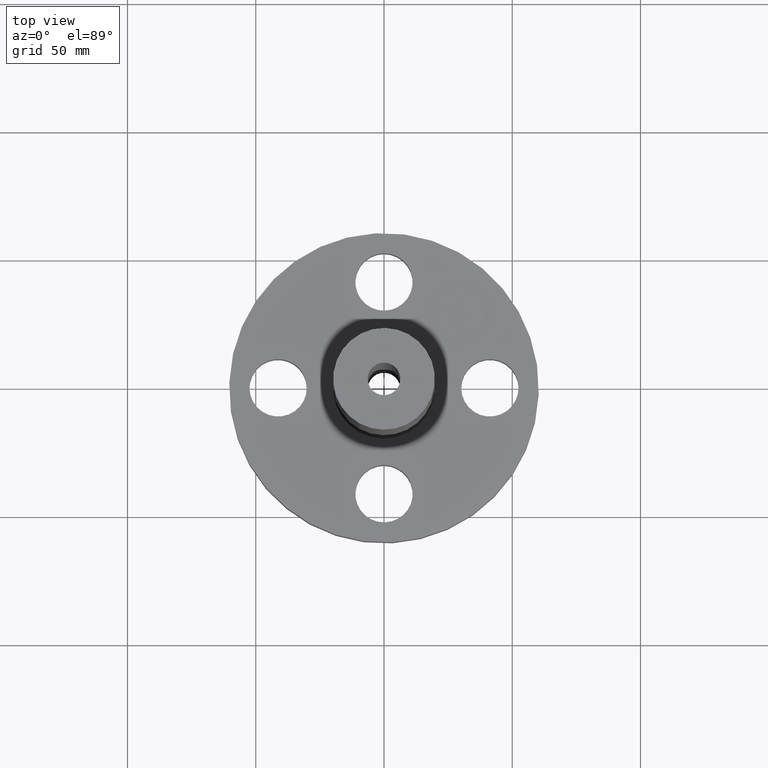
[diagram: clean part render]
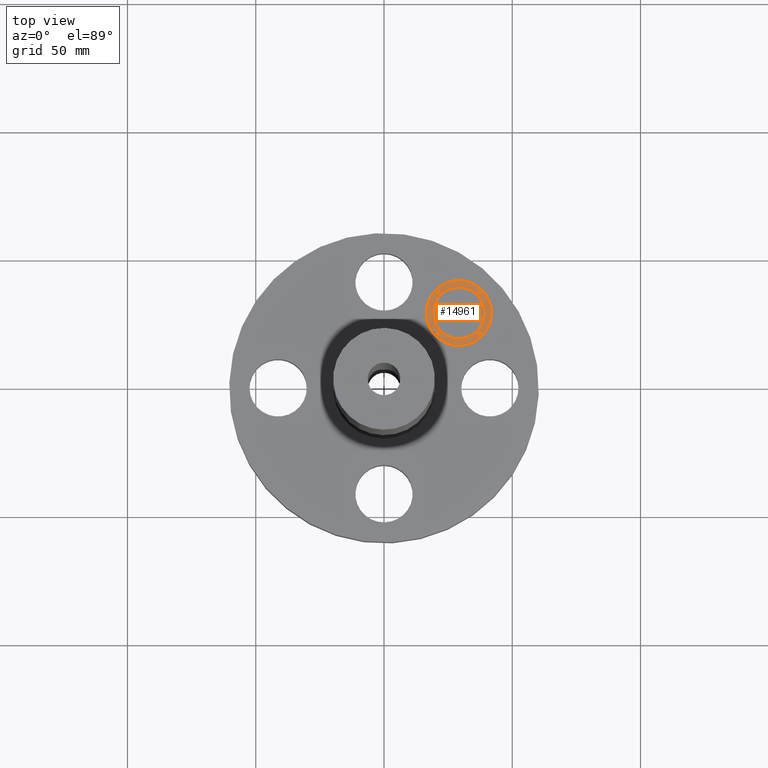
[diagram: same view with one face highlighted and labeled with its STEP entity id]
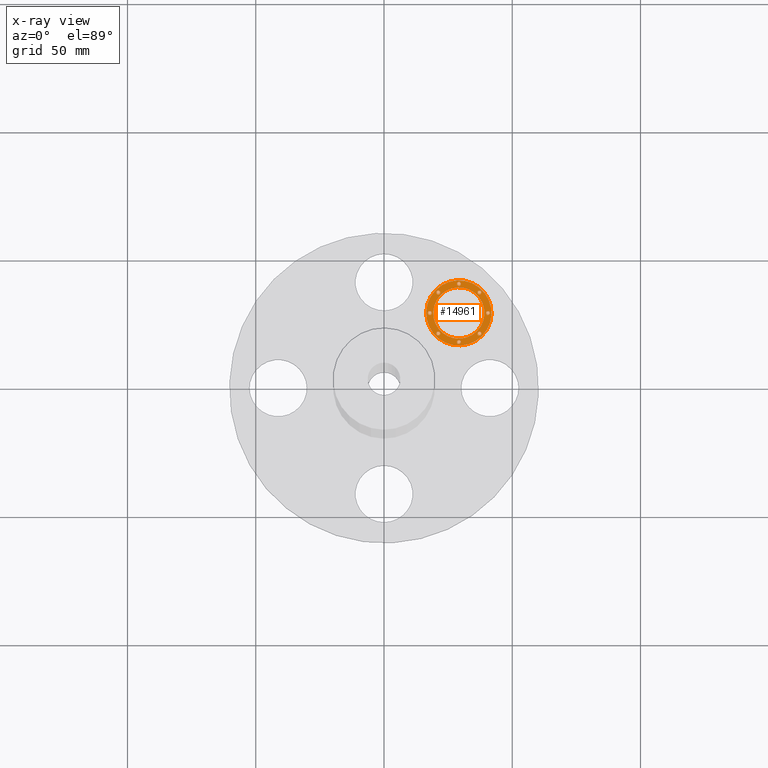
[diagram: x-ray of the same camera — body ghosted, the highlighted face saturated]
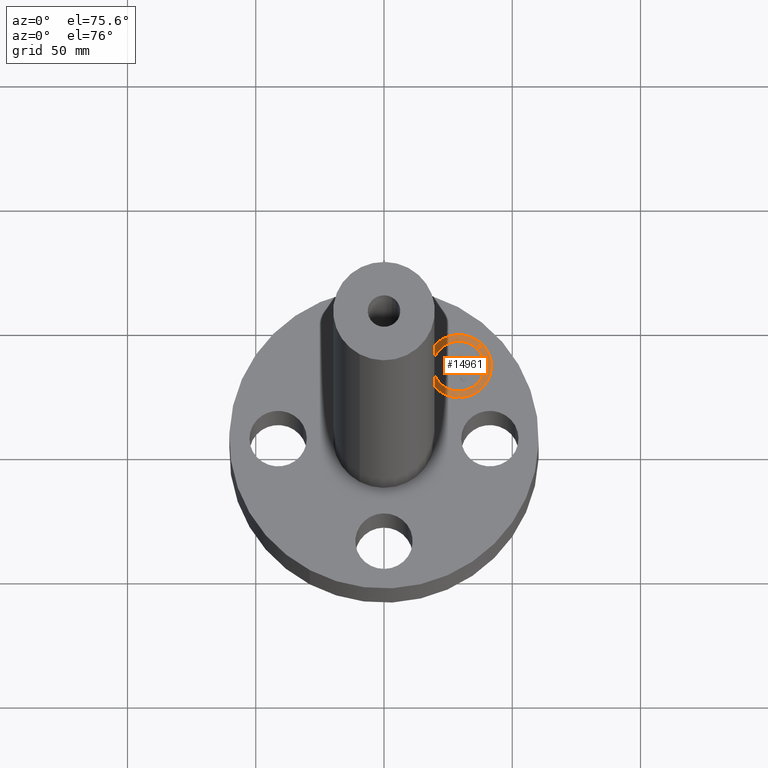
[diagram: same view with one face highlighted and labeled with its STEP entity id]
A machine part, top view. The second image highlights one B-rep face of the part: STEP entity #14961.
The next image is the same camera in x-ray: the body ghosted, the highlighted face saturated — about 0% of this face is hidden behind the body in this view.
A second angle (auxiliary view) of the same face is appended — the face is thin or edge-on in the first view.
In plain terms, the highlighted planar face has unit normal (0, 0, 1).
Its self-contained STEP definition (entity closure, byte-faithful):
#3608=AXIS2_PLACEMENT_3D('Plane Axis2P3D',#3605,#3606,#3607) ;
#14759=AXIS2_PLACEMENT_3D('Circle Axis2P3D',#14757,#14758,$) ;
#14778=AXIS2_PLACEMENT_3D('Circle Axis2P3D',#14776,#14777,$) ;
#14801=AXIS2_PLACEMENT_3D('Circle Axis2P3D',#14799,#14800,$) ;
#14810=AXIS2_PLACEMENT_3D('Circle Axis2P3D',#14808,#14809,$) ;
#14819=AXIS2_PLACEMENT_3D('Circle Axis2P3D',#14817,#14818,$) ;
#14828=AXIS2_PLACEMENT_3D('Circle Axis2P3D',#14826,#14827,$) ;
#14837=AXIS2_PLACEMENT_3D('Circle Axis2P3D',#14835,#14836,$) ;
#14846=AXIS2_PLACEMENT_3D('Circle Axis2P3D',#14844,#14845,$) ;
#14855=AXIS2_PLACEMENT_3D('Circle Axis2P3D',#14853,#14854,$) ;
#14864=AXIS2_PLACEMENT_3D('Circle Axis2P3D',#14862,#14863,$) ;
#14873=AXIS2_PLACEMENT_3D('Circle Axis2P3D',#14871,#14872,$) ;
#14882=AXIS2_PLACEMENT_3D('Circle Axis2P3D',#14880,#14881,$) ;
#14891=AXIS2_PLACEMENT_3D('Circle Axis2P3D',#14889,#14890,$) ;
#14900=AXIS2_PLACEMENT_3D('Circle Axis2P3D',#14898,#14899,$) ;
#14909=AXIS2_PLACEMENT_3D('Circle Axis2P3D',#14907,#14908,$) ;
#14918=AXIS2_PLACEMENT_3D('Circle Axis2P3D',#14916,#14917,$) ;
#14927=AXIS2_PLACEMENT_3D('Circle Axis2P3D',#14925,#14926,$) ;
#14936=AXIS2_PLACEMENT_3D('Circle Axis2P3D',#14934,#14935,$) ;
#14945=AXIS2_PLACEMENT_3D('Circle Axis2P3D',#14943,#14944,$) ;
#14954=AXIS2_PLACEMENT_3D('Circle Axis2P3D',#14952,#14953,$) ;
#3605=CARTESIAN_POINT('Axis2P3D Location',(0.,0.,0.875000000004)) ;
#14747=CARTESIAN_POINT('Vertex',(0.795495132374,1.50260190649,0.875000000004)) ;
#14754=CARTESIAN_POINT('Vertex',(1.50260190649,0.795495132374,0.875000000004)) ;
#14757=CARTESIAN_POINT('Axis2P3D Location',(1.14904851943,1.14904851943,0.875000000004)) ;
#14776=CARTESIAN_POINT('Axis2P3D Location',(1.14904851943,1.14904851943,0.875000000004)) ;
#14799=CARTESIAN_POINT('Axis2P3D Location',(1.14904851943,1.14904851943,0.875000000004)) ;
#14803=CARTESIAN_POINT('Vertex',(1.42760573348,0.870491305386,0.875000000004)) ;
#14805=CARTESIAN_POINT('Vertex',(0.870491305386,1.42760573348,0.875000000004)) ;
#14808=CARTESIAN_POINT('Axis2P3D Location',(1.14904851943,1.14904851943,0.875000000004)) ;
#14817=CARTESIAN_POINT('Axis2P3D Location',(0.83299321888,0.83299321888,0.875000000004)) ;
#14821=CARTESIAN_POINT('Vertex',(0.854420696883,0.811565740876,0.875000000004)) ;
#14823=CARTESIAN_POINT('Vertex',(0.811565740876,0.854420696883,0.875000000004)) ;
#14826=CARTESIAN_POINT('Axis2P3D Location',(0.83299321888,0.83299321888,0.875000000004)) ;
#14835=CARTESIAN_POINT('Axis2P3D Location',(0.83299321888,1.46510381999,0.875000000004)) ;
#14839=CARTESIAN_POINT('Vertex',(0.854420696883,1.44367634198,0.875000000004)) ;
#14841=CARTESIAN_POINT('Vertex',(0.811565740876,1.48653129799,0.875000000004)) ;
#14844=CARTESIAN_POINT('Axis2P3D Location',(0.83299321888,1.46510381999,0.875000000004)) ;
#14853=CARTESIAN_POINT('Axis2P3D Location',(0.702078826931,1.14904851943,0.875000000004)) ;
#14857=CARTESIAN_POINT('Vertex',(0.723506304934,1.12762104143,0.875000000004)) ;
#14859=CARTESIAN_POINT('Vertex',(0.680651348927,1.17047599744,0.875000000004)) ;
#14862=CARTESIAN_POINT('Axis2P3D Location',(0.702078826931,1.14904851943,0.875000000004)) ;
#14871=CARTESIAN_POINT('Axis2P3D Location',(1.46510381999,1.46510381999,0.875000000004)) ;
#14875=CARTESIAN_POINT('Vertex',(1.48653129799,1.44367634198,0.875000000004)) ;
#14877=CARTESIAN_POINT('Vertex',(1.44367634198,1.48653129799,0.875000000004)) ;
#14880=CARTESIAN_POINT('Axis2P3D Location',(1.46510381999,1.46510381999,0.875000000004)) ;
#14889=CARTESIAN_POINT('Axis2P3D Location',(1.14904851943,1.59601821193,0.875000000004)) ;
#14893=CARTESIAN_POINT('Vertex',(1.17047599744,1.57459073393,0.875000000004)) ;
#14895=CARTESIAN_POINT('Vertex',(1.12762104143,1.61744568994,0.875000000004)) ;
#14898=CARTESIAN_POINT('Axis2P3D Location',(1.14904851943,1.59601821193,0.875000000004)) ;
#14907=CARTESIAN_POINT('Axis2P3D Location',(1.46510381999,0.83299321888,0.875000000004)) ;
#14911=CARTESIAN_POINT('Vertex',(1.44367634198,0.854420696883,0.875000000004)) ;
#14913=CARTESIAN_POINT('Vertex',(1.48653129799,0.811565740876,0.875000000004)) ;
#14916=CARTESIAN_POINT('Axis2P3D Location',(1.46510381999,0.83299321888,0.875000000004)) ;
#14925=CARTESIAN_POINT('Axis2P3D Location',(1.14904851943,0.702078826931,0.875000000004)) ;
#14929=CARTESIAN_POINT('Vertex',(1.12762104143,0.723506304935,0.875000000004)) ;
#14931=CARTESIAN_POINT('Vertex',(1.17047599744,0.680651348927,0.875000000004)) ;
#14934=CARTESIAN_POINT('Axis2P3D Location',(1.14904851943,0.702078826931,0.875000000004)) ;
#14943=CARTESIAN_POINT('Axis2P3D Location',(1.59601821193,1.14904851943,0.875000000004)) ;
#14947=CARTESIAN_POINT('Vertex',(1.57459073393,1.17047599744,0.875000000004)) ;
#14949=CARTESIAN_POINT('Vertex',(1.61744568994,1.12762104143,0.875000000004)) ;
#14952=CARTESIAN_POINT('Axis2P3D Location',(1.59601821193,1.14904851943,0.875000000004)) ;
#3606=DIRECTION('Axis2P3D Direction',(0.,0.,0.0393700787402)) ;
#3607=DIRECTION('Axis2P3D XDirection',(0.0393700787402,0.,0.)) ;
#14758=DIRECTION('Axis2P3D Direction',(0.,0.,0.0393700787402)) ;
#14777=DIRECTION('Axis2P3D Direction',(0.,0.,0.0393700787402)) ;
#14800=DIRECTION('Axis2P3D Direction',(0.,0.,0.0393700787402)) ;
#14809=DIRECTION('Axis2P3D Direction',(0.,0.,0.0393700787402)) ;
#14818=DIRECTION('Axis2P3D Direction',(0.,0.,0.0393700787402)) ;
#14827=DIRECTION('Axis2P3D Direction',(0.,0.,0.0393700787402)) ;
#14836=DIRECTION('Axis2P3D Direction',(0.,0.,0.0393700787402)) ;
#14845=DIRECTION('Axis2P3D Direction',(0.,0.,0.0393700787402)) ;
#14854=DIRECTION('Axis2P3D Direction',(0.,0.,0.0393700787402)) ;
#14863=DIRECTION('Axis2P3D Direction',(0.,0.,0.0393700787402)) ;
#14872=DIRECTION('Axis2P3D Direction',(0.,0.,0.0393700787402)) ;
#14881=DIRECTION('Axis2P3D Direction',(0.,0.,0.0393700787402)) ;
#14890=DIRECTION('Axis2P3D Direction',(0.,0.,0.0393700787402)) ;
#14899=DIRECTION('Axis2P3D Direction',(0.,0.,0.0393700787402)) ;
#14908=DIRECTION('Axis2P3D Direction',(0.,0.,0.0393700787402)) ;
#14917=DIRECTION('Axis2P3D Direction',(0.,0.,0.0393700787402)) ;
#14926=DIRECTION('Axis2P3D Direction',(0.,0.,0.0393700787402)) ;
#14935=DIRECTION('Axis2P3D Direction',(0.,0.,0.0393700787402)) ;
#14944=DIRECTION('Axis2P3D Direction',(0.,0.,0.0393700787402)) ;
#14953=DIRECTION('Axis2P3D Direction',(0.,0.,0.0393700787402)) ;
#14796=ORIENTED_EDGE('',*,*,#14761,.T.) ;
#14797=ORIENTED_EDGE('',*,*,#14780,.T.) ;
#14814=ORIENTED_EDGE('',*,*,#14807,.F.) ;
#14815=ORIENTED_EDGE('',*,*,#14812,.F.) ;
#14832=ORIENTED_EDGE('',*,*,#14825,.F.) ;
#14833=ORIENTED_EDGE('',*,*,#14830,.F.) ;
#14850=ORIENTED_EDGE('',*,*,#14843,.F.) ;
#14851=ORIENTED_EDGE('',*,*,#14848,.F.) ;
#14868=ORIENTED_EDGE('',*,*,#14861,.F.) ;
#14869=ORIENTED_EDGE('',*,*,#14866,.F.) ;
#14886=ORIENTED_EDGE('',*,*,#14879,.F.) ;
#14887=ORIENTED_EDGE('',*,*,#14884,.F.) ;
#14904=ORIENTED_EDGE('',*,*,#14897,.F.) ;
#14905=ORIENTED_EDGE('',*,*,#14902,.F.) ;
#14922=ORIENTED_EDGE('',*,*,#14915,.F.) ;
#14923=ORIENTED_EDGE('',*,*,#14920,.F.) ;
#14940=ORIENTED_EDGE('',*,*,#14933,.F.) ;
#14941=ORIENTED_EDGE('',*,*,#14938,.F.) ;
#14958=ORIENTED_EDGE('',*,*,#14951,.F.) ;
#14959=ORIENTED_EDGE('',*,*,#14956,.F.) ;
#14816=FACE_BOUND('',#14813,.T.) ;
#14834=FACE_BOUND('',#14831,.T.) ;
#14852=FACE_BOUND('',#14849,.T.) ;
#14870=FACE_BOUND('',#14867,.T.) ;
#14888=FACE_BOUND('',#14885,.T.) ;
#14906=FACE_BOUND('',#14903,.T.) ;
#14924=FACE_BOUND('',#14921,.T.) ;
#14942=FACE_BOUND('',#14939,.T.) ;
#14960=FACE_BOUND('',#14957,.T.) ;
#14961=ADVANCED_FACE('PartBody',(#14798,#14816,#14834,#14852,#14870,#14888,#14906,#14924,#14942,#14960),#3609,.T.) ;
#14760=CIRCLE('generated circle',#14759,0.499999995002) ;
#14779=CIRCLE('generated circle',#14778,0.499999995002) ;
#14802=CIRCLE('generated circle',#14801,0.393939390002) ;
#14811=CIRCLE('generated circle',#14810,0.393939390002) ;
#14820=CIRCLE('generated circle',#14819,0.0303030300001) ;
#14829=CIRCLE('generated circle',#14828,0.0303030300001) ;
#14838=CIRCLE('generated circle',#14837,0.0303030300001) ;
#14847=CIRCLE('generated circle',#14846,0.0303030300001) ;
#14856=CIRCLE('generated circle',#14855,0.0303030300001) ;
#14865=CIRCLE('generated circle',#14864,0.0303030300001) ;
#14874=CIRCLE('generated circle',#14873,0.0303030300001) ;
#14883=CIRCLE('generated circle',#14882,0.0303030300001) ;
#14892=CIRCLE('generated circle',#14891,0.0303030300001) ;
#14901=CIRCLE('generated circle',#14900,0.0303030300001) ;
#14910=CIRCLE('generated circle',#14909,0.0303030300001) ;
#14919=CIRCLE('generated circle',#14918,0.0303030300001) ;
#14928=CIRCLE('generated circle',#14927,0.0303030300001) ;
#14937=CIRCLE('generated circle',#14936,0.0303030300001) ;
#14946=CIRCLE('generated circle',#14945,0.0303030300001) ;
#14955=CIRCLE('generated circle',#14954,0.0303030300001) ;
#14761=EDGE_CURVE('',#14748,#14755,#14760,.T.) ;
#14780=EDGE_CURVE('',#14755,#14748,#14779,.T.) ;
#14807=EDGE_CURVE('',#14804,#14806,#14802,.T.) ;
#14812=EDGE_CURVE('',#14806,#14804,#14811,.T.) ;
#14825=EDGE_CURVE('',#14822,#14824,#14820,.T.) ;
#14830=EDGE_CURVE('',#14824,#14822,#14829,.T.) ;
#14843=EDGE_CURVE('',#14840,#14842,#14838,.T.) ;
#14848=EDGE_CURVE('',#14842,#14840,#14847,.T.) ;
#14861=EDGE_CURVE('',#14858,#14860,#14856,.T.) ;
#14866=EDGE_CURVE('',#14860,#14858,#14865,.T.) ;
#14879=EDGE_CURVE('',#14876,#14878,#14874,.T.) ;
#14884=EDGE_CURVE('',#14878,#14876,#14883,.T.) ;
#14897=EDGE_CURVE('',#14894,#14896,#14892,.T.) ;
#14902=EDGE_CURVE('',#14896,#14894,#14901,.T.) ;
#14915=EDGE_CURVE('',#14912,#14914,#14910,.T.) ;
#14920=EDGE_CURVE('',#14914,#14912,#14919,.T.) ;
#14933=EDGE_CURVE('',#14930,#14932,#14928,.T.) ;
#14938=EDGE_CURVE('',#14932,#14930,#14937,.T.) ;
#14951=EDGE_CURVE('',#14948,#14950,#14946,.T.) ;
#14956=EDGE_CURVE('',#14950,#14948,#14955,.T.) ;
#14795=EDGE_LOOP('',(#14796,#14797)) ;
#14813=EDGE_LOOP('',(#14814,#14815)) ;
#14831=EDGE_LOOP('',(#14832,#14833)) ;
#14849=EDGE_LOOP('',(#14850,#14851)) ;
#14867=EDGE_LOOP('',(#14868,#14869)) ;
#14885=EDGE_LOOP('',(#14886,#14887)) ;
#14903=EDGE_LOOP('',(#14904,#14905)) ;
#14921=EDGE_LOOP('',(#14922,#14923)) ;
#14939=EDGE_LOOP('',(#14940,#14941)) ;
#14957=EDGE_LOOP('',(#14958,#14959)) ;
#14798=FACE_OUTER_BOUND('',#14795,.T.) ;
#3609=PLANE('',#3608) ;
#14748=VERTEX_POINT('',#14747) ;
#14755=VERTEX_POINT('',#14754) ;
#14804=VERTEX_POINT('',#14803) ;
#14806=VERTEX_POINT('',#14805) ;
#14822=VERTEX_POINT('',#14821) ;
#14824=VERTEX_POINT('',#14823) ;
#14840=VERTEX_POINT('',#14839) ;
#14842=VERTEX_POINT('',#14841) ;
#14858=VERTEX_POINT('',#14857) ;
#14860=VERTEX_POINT('',#14859) ;
#14876=VERTEX_POINT('',#14875) ;
#14878=VERTEX_POINT('',#14877) ;
#14894=VERTEX_POINT('',#14893) ;
#14896=VERTEX_POINT('',#14895) ;
#14912=VERTEX_POINT('',#14911) ;
#14914=VERTEX_POINT('',#14913) ;
#14930=VERTEX_POINT('',#14929) ;
#14932=VERTEX_POINT('',#14931) ;
#14948=VERTEX_POINT('',#14947) ;
#14950=VERTEX_POINT('',#14949) ;